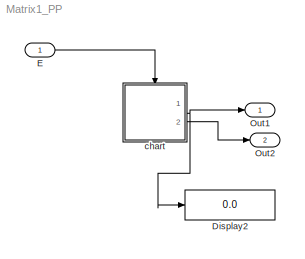
MODEL Matrix1_PP
KIND model
BLOCK [Display] Display2
  Decimation = 1
  Ports = [1]
  SID = 5
BLOCK [Inport] E
  IconDisplay = Port number
  SID = 10
BLOCK [Outport] Out1
  IconDisplay = Port number
  SID = 12
BLOCK [Outport] Out2
  IconDisplay = Port number
  Port = 2
  SID = 13
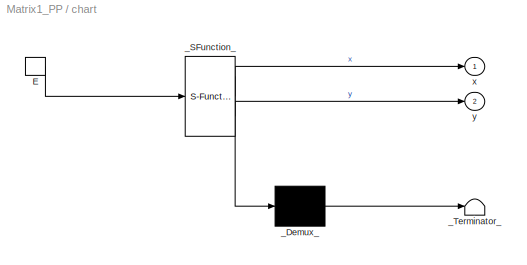
BLOCK [SubSystem] chart
  ErrorFcn = Stateflow.Translate.translate
  PermitHierarchicalResolution = ExplicitOnly
  Ports = [0, 2, 0, 1]
  RequestExecContextInheritance = off
  SFBlockType = Chart
  SID = 1
  TreatAsAtomicUnit = on
  Variant = off
BLOCK [TriggerPort] chart/E
  Ports = [0, 1]
  SID = 1::1
  ShowOutputPort = on
  VariantControl = (inherit)
BLOCK [Demux] chart/_Demux_
  Outputs = 1
  Ports = [1, 1]
  SID = 1::17
BLOCK [S-Function] chart/_SFunction_
  EnableBusSupport = on
  FunctionName = sf_sfun
  PortCounts = [1 3]
  Ports = [1, 3]
  SFcnIsStateOwnerBlock = off
  SFunctionDeploymentMode = off
  SID = 1::16
  Tag = Stateflow S-Function Matrix1_PP 1
BLOCK [Terminator] chart/_Terminator_
  SID = 1::18
BLOCK [Outport] chart/x
  IconDisplay = Port number
  SID = 1::5
BLOCK [Outport] chart/y
  IconDisplay = Port number
  Port = 2
  SID = 1::19
LINE E:1 -> chart:trigger
LINE chart/E:1 -> chart/_SFunction_:1
LINE chart/_Demux_:1 -> chart/_Terminator_:1
LINE chart/_SFunction_:1 -> chart/_Demux_:1
LINE chart/_SFunction_:2 -> chart/x:1
LINE chart/_SFunction_:3 -> chart/y:1
NET chart:1 -> Display2:1, Out1:1
LINE chart:2 -> Out2:1
note: NET lines group one-source signal fan-out (src -> all destinations, sorted); 1:1 wires keep LINE
CHART chart states=3 transitions=4
  STATE_LABEL 'A/\\nen:\\ni = 3;\\nx(1) = x(2,i) + 1;'
  STATE_LABEL 'B/\\nen:x(2) = x(2,2) + 1;\\ny(2) = x(2) * 3;'
  STATE_LABEL 'C/\\nen:x= y * 2;'
